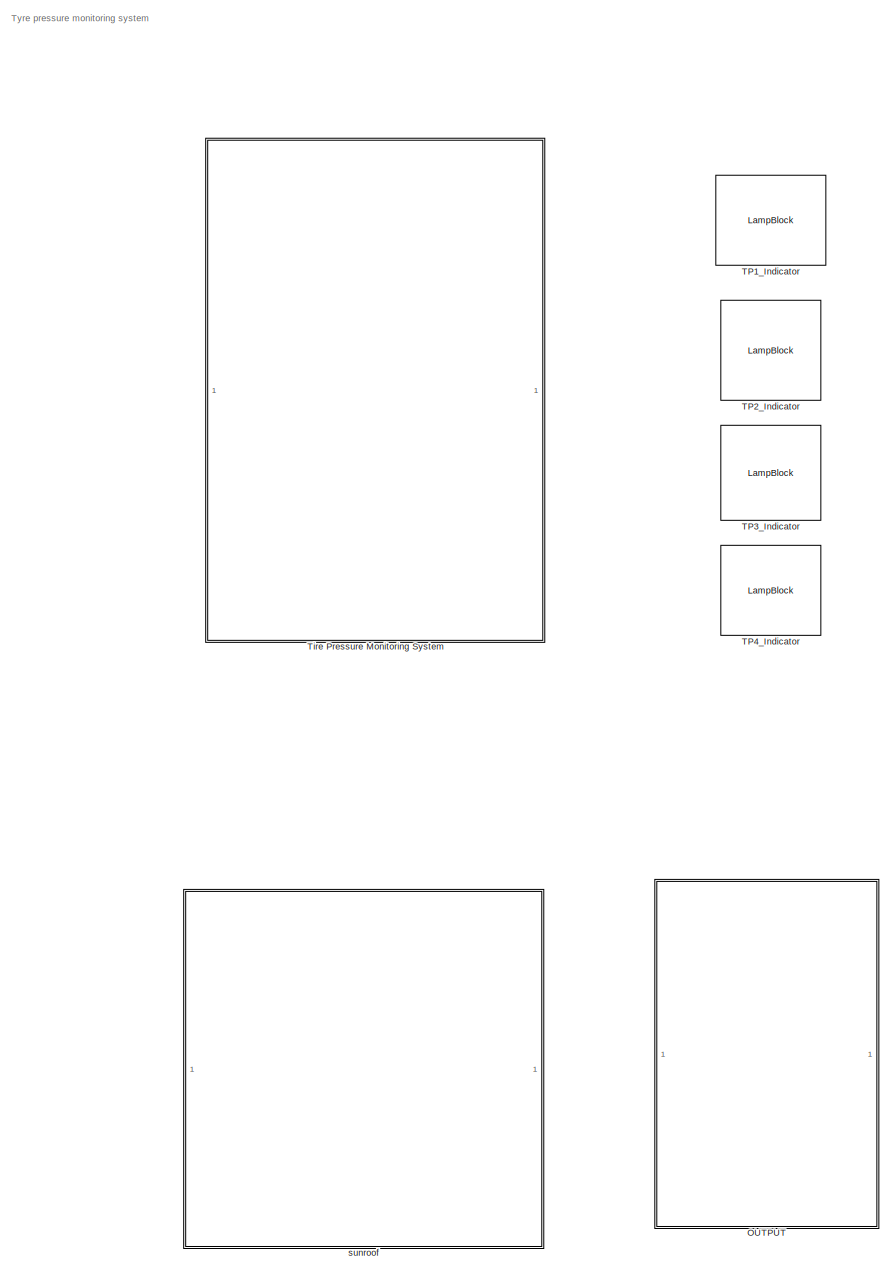
[diagram: root canvas - part 1/2, right side, full height]
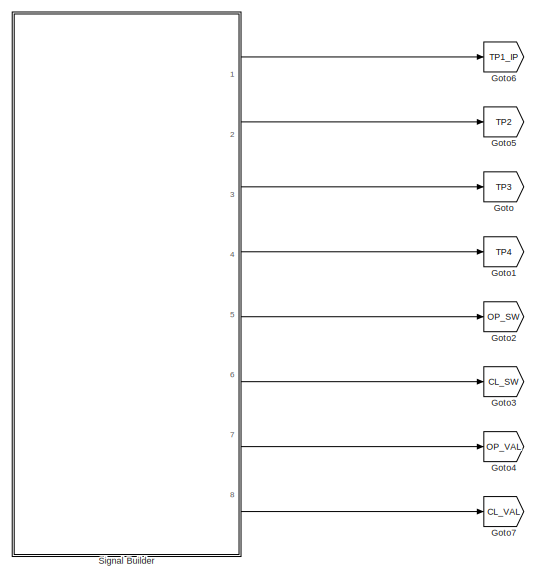
[diagram: root canvas - part 2/2, middle left region]
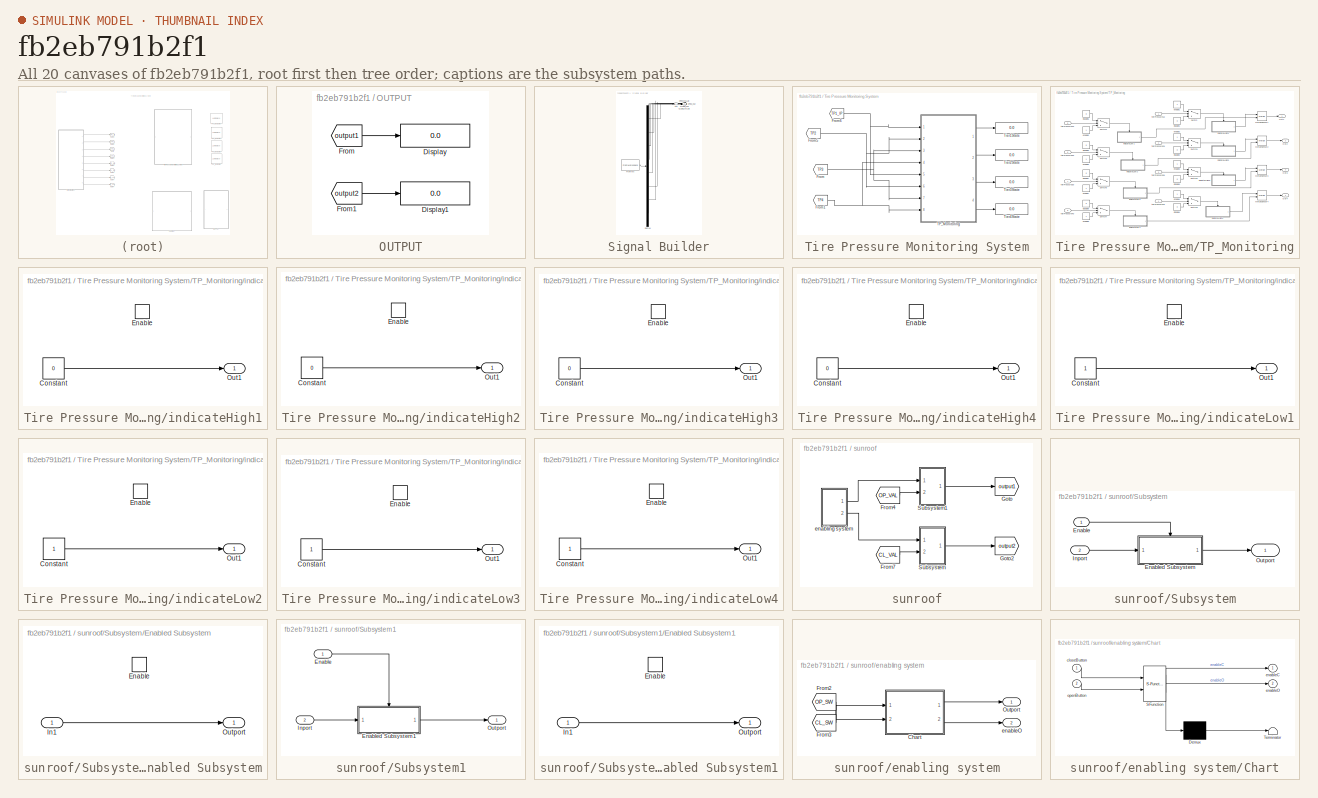
[diagram: thumbnail index - all 20 canvases of the model, root first then tree order]
MODEL slx_fb2eb791b2f1
KIND model
CONFIG AbsTol = auto
CONFIG EnableMultiTasking = off
CONFIG FixedStep = auto
CONFIG MaxStep = auto
CONFIG MinStep = auto
CONFIG RelTol = 1e-3
CONFIG SampleTimeConstraint = Unconstrained
CONFIG SolverName = VariableStepAuto
CONFIG StartTime = 0.0
CONFIG StopTime = 20
BLOCK [Goto] Goto
  GotoTag = TP3
  TagVisibility = global
BLOCK [Goto] Goto1
  GotoTag = TP4
  TagVisibility = global
BLOCK [Goto] Goto2
  GotoTag = OP_SW
  TagVisibility = global
BLOCK [Goto] Goto3
  GotoTag = CL_SW
  TagVisibility = global
BLOCK [Goto] Goto4
  GotoTag = OP_VAL
  TagVisibility = global
BLOCK [Goto] Goto5
  GotoTag = TP2
  TagVisibility = global
BLOCK [Goto] Goto6
  GotoTag = TP1_IP
  TagVisibility = global
BLOCK [Goto] Goto7
  GotoTag = CL_VAL
  TagVisibility = global
BLOCK [SubSystem] OUTPUT
  Ports = []
  RequestExecContextInheritance = off
BLOCK [Display] OUTPUT/Display
  Decimation = 1
  Ports = [1]
BLOCK [Display] OUTPUT/Display1
  Decimation = 1
  Ports = [1]
BLOCK [From] OUTPUT/From
  GotoTag = output1
  TagVisibility = global
BLOCK [From] OUTPUT/From1
  GotoTag = output2
  TagVisibility = global
BLOCK [SubSystem] Signal Builder
  ClipboardFcn = sigbuilder_block('clipboard');
  CloseFcn = sigbuilder_block('close');
  ContinueFcn = sigbuilder_block('continue');
  CopyFcn = sigbuilder_block('copy');
  DeleteFcn = sigbuilder_block('delete');
  LoadFcn = sigbuilder_block('load');
  MaskHideContents = on
  ModelCloseFcn = sigbuilder_block('modelClose');
  NameChangeFcn = sigbuilder_block('namechange');
  OpenFcn = sigbuilder_block('open',[0 30 1200 587.25 ]);
  PauseFcn = sigbuilder_block('pause');
  Ports = [0, 8]
  PreSaveFcn = sigbuilder_block('preSave');
  RequestExecContextInheritance = off
  StartFcn = sigbuilder_block('start');
  StopFcn = sigbuilder_block('stop');
  Tag = STV Subsys
BLOCK [Outport] Signal Builder/CLOSE_SW
  Port = 6
  Tag = STV Outport
BLOCK [Outport] Signal Builder/CLOSE_VALUE
  Port = 8
  Tag = STV Outport
BLOCK [Demux] Signal Builder/Demux
  DisplayOption = none
  Outputs = 8
  Ports = [1, 8]
  Tag = STV Demux
BLOCK [FromWorkspace] Signal Builder/FromWs
  SampleTime = 1
  Tag = STV FromWs
  VariableName = tuvar
BLOCK [Outport] Signal Builder/OPEN_SW
  Port = 5
  Tag = STV Outport
BLOCK [Outport] Signal Builder/OPEN_VALUE
  Port = 7
  Tag = STV Outport
BLOCK [Outport] Signal Builder/TP1
  Tag = STV Outport
BLOCK [Outport] Signal Builder/TP2
  Port = 2
  Tag = STV Outport
BLOCK [Outport] Signal Builder/TP3
  Port = 3
  Tag = STV Outport
BLOCK [Outport] Signal Builder/TP4
  Port = 4
  Tag = STV Outport
BLOCK [LampBlock] TP1_Indicator
BLOCK [LampBlock] TP2_Indicator
BLOCK [LampBlock] TP3_Indicator
BLOCK [LampBlock] TP4_Indicator
BLOCK [SubSystem] Tire Pressure Monitoring System
  Ports = []
  RequestExecContextInheritance = off
BLOCK [From] Tire Pressure Monitoring System/From
  GotoTag = TP3
  TagVisibility = global
BLOCK [From] Tire Pressure Monitoring System/From1
  GotoTag = TP4
  TagVisibility = global
BLOCK [From] Tire Pressure Monitoring System/From5
  GotoTag = TP2
  TagVisibility = global
BLOCK [From] Tire Pressure Monitoring System/From6
  GotoTag = TP1_IP
  TagVisibility = global
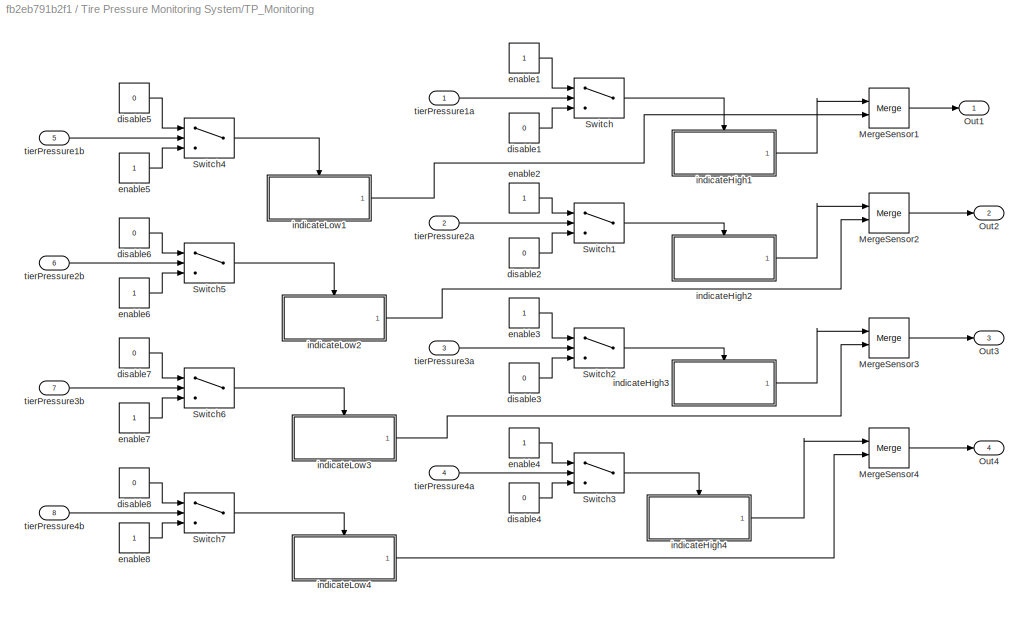
BLOCK [SubSystem] Tire Pressure Monitoring System/TP_Monitoring
  Ports = [8, 4]
  RequestExecContextInheritance = off
BLOCK [Merge] Tire Pressure Monitoring System/TP_Monitoring/MergeSensor1
  Ports = [2, 1]
BLOCK [Merge] Tire Pressure Monitoring System/TP_Monitoring/MergeSensor2
  Ports = [2, 1]
BLOCK [Merge] Tire Pressure Monitoring System/TP_Monitoring/MergeSensor3
  Ports = [2, 1]
BLOCK [Merge] Tire Pressure Monitoring System/TP_Monitoring/MergeSensor4
  Ports = [2, 1]
BLOCK [Outport] Tire Pressure Monitoring System/TP_Monitoring/Out1
BLOCK [Outport] Tire Pressure Monitoring System/TP_Monitoring/Out2
  Port = 2
BLOCK [Outport] Tire Pressure Monitoring System/TP_Monitoring/Out3
  Port = 3
BLOCK [Outport] Tire Pressure Monitoring System/TP_Monitoring/Out4
  Port = 4
BLOCK [Switch] Tire Pressure Monitoring System/TP_Monitoring/Switch
  Criteria = u2 > Threshold
  InputSameDT = off
  SaturateOnIntegerOverflow = off
  Threshold = 75
BLOCK [Switch] Tire Pressure Monitoring System/TP_Monitoring/Switch1
  Criteria = u2 > Threshold
  InputSameDT = off
  SaturateOnIntegerOverflow = off
  Threshold = 75
BLOCK [Switch] Tire Pressure Monitoring System/TP_Monitoring/Switch2
  Criteria = u2 > Threshold
  InputSameDT = off
  SaturateOnIntegerOverflow = off
  Threshold = 75
BLOCK [Switch] Tire Pressure Monitoring System/TP_Monitoring/Switch3
  Criteria = u2 > Threshold
  InputSameDT = off
  SaturateOnIntegerOverflow = off
  Threshold = 75
BLOCK [Switch] Tire Pressure Monitoring System/TP_Monitoring/Switch4
  Criteria = u2 > Threshold
  InputSameDT = off
  SaturateOnIntegerOverflow = off
  Threshold = 75
BLOCK [Switch] Tire Pressure Monitoring System/TP_Monitoring/Switch5
  Criteria = u2 > Threshold
  InputSameDT = off
  SaturateOnIntegerOverflow = off
  Threshold = 75
BLOCK [Switch] Tire Pressure Monitoring System/TP_Monitoring/Switch6
  Criteria = u2 > Threshold
  InputSameDT = off
  SaturateOnIntegerOverflow = off
  Threshold = 75
BLOCK [Switch] Tire Pressure Monitoring System/TP_Monitoring/Switch7
  Criteria = u2 > Threshold
  InputSameDT = off
  SaturateOnIntegerOverflow = off
  Threshold = 75
BLOCK [Constant] Tire Pressure Monitoring System/TP_Monitoring/disable1
  Value = 0
BLOCK [Constant] Tire Pressure Monitoring System/TP_Monitoring/disable2
  Value = 0
BLOCK [Constant] Tire Pressure Monitoring System/TP_Monitoring/disable3
  Value = 0
BLOCK [Constant] Tire Pressure Monitoring System/TP_Monitoring/disable4
  Value = 0
BLOCK [Constant] Tire Pressure Monitoring System/TP_Monitoring/disable5
  Value = 0
BLOCK [Constant] Tire Pressure Monitoring System/TP_Monitoring/disable6
  Value = 0
BLOCK [Constant] Tire Pressure Monitoring System/TP_Monitoring/disable7
  Value = 0
BLOCK [Constant] Tire Pressure Monitoring System/TP_Monitoring/disable8
  Value = 0
BLOCK [Constant] Tire Pressure Monitoring System/TP_Monitoring/enable1
BLOCK [Constant] Tire Pressure Monitoring System/TP_Monitoring/enable2
BLOCK [Constant] Tire Pressure Monitoring System/TP_Monitoring/enable3
BLOCK [Constant] Tire Pressure Monitoring System/TP_Monitoring/enable4
BLOCK [Constant] Tire Pressure Monitoring System/TP_Monitoring/enable5
BLOCK [Constant] Tire Pressure Monitoring System/TP_Monitoring/enable6
BLOCK [Constant] Tire Pressure Monitoring System/TP_Monitoring/enable7
BLOCK [Constant] Tire Pressure Monitoring System/TP_Monitoring/enable8
BLOCK [SubSystem] Tire Pressure Monitoring System/TP_Monitoring/indicateHigh1
  Ports = [0, 1, 1]
  RequestExecContextInheritance = off
  TreatAsAtomicUnit = on
BLOCK [Constant] Tire Pressure Monitoring System/TP_Monitoring/indicateHigh1/Constant
  Value = 0
BLOCK [EnablePort] Tire Pressure Monitoring System/TP_Monitoring/indicateHigh1/Enable
  Ports = []
BLOCK [Outport] Tire Pressure Monitoring System/TP_Monitoring/indicateHigh1/Out1
BLOCK [SubSystem] Tire Pressure Monitoring System/TP_Monitoring/indicateHigh2
  Ports = [0, 1, 1]
  RequestExecContextInheritance = off
  TreatAsAtomicUnit = on
BLOCK [Constant] Tire Pressure Monitoring System/TP_Monitoring/indicateHigh2/Constant
  Value = 0
BLOCK [EnablePort] Tire Pressure Monitoring System/TP_Monitoring/indicateHigh2/Enable
  Ports = []
BLOCK [Outport] Tire Pressure Monitoring System/TP_Monitoring/indicateHigh2/Out1
BLOCK [SubSystem] Tire Pressure Monitoring System/TP_Monitoring/indicateHigh3
  Ports = [0, 1, 1]
  RequestExecContextInheritance = off
  TreatAsAtomicUnit = on
BLOCK [Constant] Tire Pressure Monitoring System/TP_Monitoring/indicateHigh3/Constant
  Value = 0
BLOCK [EnablePort] Tire Pressure Monitoring System/TP_Monitoring/indicateHigh3/Enable
  Ports = []
BLOCK [Outport] Tire Pressure Monitoring System/TP_Monitoring/indicateHigh3/Out1
BLOCK [SubSystem] Tire Pressure Monitoring System/TP_Monitoring/indicateHigh4
  Ports = [0, 1, 1]
  RequestExecContextInheritance = off
  TreatAsAtomicUnit = on
BLOCK [Constant] Tire Pressure Monitoring System/TP_Monitoring/indicateHigh4/Constant
  Value = 0
BLOCK [EnablePort] Tire Pressure Monitoring System/TP_Monitoring/indicateHigh4/Enable
  Ports = []
BLOCK [Outport] Tire Pressure Monitoring System/TP_Monitoring/indicateHigh4/Out1
BLOCK [SubSystem] Tire Pressure Monitoring System/TP_Monitoring/indicateLow1
  Ports = [0, 1, 1]
  RequestExecContextInheritance = off
  TreatAsAtomicUnit = on
BLOCK [Constant] Tire Pressure Monitoring System/TP_Monitoring/indicateLow1/Constant
BLOCK [EnablePort] Tire Pressure Monitoring System/TP_Monitoring/indicateLow1/Enable
  Ports = []
BLOCK [Outport] Tire Pressure Monitoring System/TP_Monitoring/indicateLow1/Out1
BLOCK [SubSystem] Tire Pressure Monitoring System/TP_Monitoring/indicateLow2
  Ports = [0, 1, 1]
  RequestExecContextInheritance = off
  TreatAsAtomicUnit = on
BLOCK [Constant] Tire Pressure Monitoring System/TP_Monitoring/indicateLow2/Constant
BLOCK [EnablePort] Tire Pressure Monitoring System/TP_Monitoring/indicateLow2/Enable
  Ports = []
BLOCK [Outport] Tire Pressure Monitoring System/TP_Monitoring/indicateLow2/Out1
BLOCK [SubSystem] Tire Pressure Monitoring System/TP_Monitoring/indicateLow3
  Ports = [0, 1, 1]
  RequestExecContextInheritance = off
  TreatAsAtomicUnit = on
BLOCK [Constant] Tire Pressure Monitoring System/TP_Monitoring/indicateLow3/Constant
BLOCK [EnablePort] Tire Pressure Monitoring System/TP_Monitoring/indicateLow3/Enable
  Ports = []
BLOCK [Outport] Tire Pressure Monitoring System/TP_Monitoring/indicateLow3/Out1
BLOCK [SubSystem] Tire Pressure Monitoring System/TP_Monitoring/indicateLow4
  Ports = [0, 1, 1]
  RequestExecContextInheritance = off
  TreatAsAtomicUnit = on
BLOCK [Constant] Tire Pressure Monitoring System/TP_Monitoring/indicateLow4/Constant
BLOCK [EnablePort] Tire Pressure Monitoring System/TP_Monitoring/indicateLow4/Enable
  Ports = []
BLOCK [Outport] Tire Pressure Monitoring System/TP_Monitoring/indicateLow4/Out1
BLOCK [Inport] Tire Pressure Monitoring System/TP_Monitoring/tierPressure1a
BLOCK [Inport] Tire Pressure Monitoring System/TP_Monitoring/tierPressure1b
  Port = 5
BLOCK [Inport] Tire Pressure Monitoring System/TP_Monitoring/tierPressure2a
  Port = 2
BLOCK [Inport] Tire Pressure Monitoring System/TP_Monitoring/tierPressure2b
  Port = 6
BLOCK [Inport] Tire Pressure Monitoring System/TP_Monitoring/tierPressure3a
  Port = 3
BLOCK [Inport] Tire Pressure Monitoring System/TP_Monitoring/tierPressure3b
  Port = 7
BLOCK [Inport] Tire Pressure Monitoring System/TP_Monitoring/tierPressure4a
  Port = 4
BLOCK [Inport] Tire Pressure Monitoring System/TP_Monitoring/tierPressure4b
  Port = 8
BLOCK [Display] Tire Pressure Monitoring System/Tier1State
  Decimation = 1
  Ports = [1]
BLOCK [Display] Tire Pressure Monitoring System/Tier2State
  Decimation = 1
  Ports = [1]
BLOCK [Display] Tire Pressure Monitoring System/Tier3State
  Decimation = 1
  Ports = [1]
BLOCK [Display] Tire Pressure Monitoring System/Tier4State
  Decimation = 1
  Ports = [1]
BLOCK [SubSystem] sunroof
  Ports = []
  RequestExecContextInheritance = off
BLOCK [From] sunroof/From4
  GotoTag = OP_VAL
  TagVisibility = global
BLOCK [From] sunroof/From7
  GotoTag = CL_VAL
  TagVisibility = global
BLOCK [Goto] sunroof/Goto
  GotoTag = output1
  TagVisibility = global
BLOCK [Goto] sunroof/Goto2
  GotoTag = output2
  TagVisibility = global
BLOCK [SubSystem] sunroof/Subsystem
  Ports = [2, 1]
  RequestExecContextInheritance = off
BLOCK [Inport] sunroof/Subsystem/Enable
BLOCK [SubSystem] sunroof/Subsystem/Enabled Subsystem
  Ports = [1, 1, 1]
  RequestExecContextInheritance = off
  TreatAsAtomicUnit = on
BLOCK [EnablePort] sunroof/Subsystem/Enabled Subsystem/Enable
  Ports = []
BLOCK [Inport] sunroof/Subsystem/Enabled Subsystem/In1
BLOCK [Outport] sunroof/Subsystem/Enabled Subsystem/Outport
BLOCK [Inport] sunroof/Subsystem/Inport
  Port = 2
BLOCK [Outport] sunroof/Subsystem/Outport
BLOCK [SubSystem] sunroof/Subsystem1
  Ports = [2, 1]
  RequestExecContextInheritance = off
BLOCK [Inport] sunroof/Subsystem1/Enable
BLOCK [SubSystem] sunroof/Subsystem1/Enabled Subsystem1
  Ports = [1, 1, 1]
  RequestExecContextInheritance = off
  TreatAsAtomicUnit = on
BLOCK [EnablePort] sunroof/Subsystem1/Enabled Subsystem1/Enable
  Ports = []
BLOCK [Inport] sunroof/Subsystem1/Enabled Subsystem1/In1
BLOCK [Outport] sunroof/Subsystem1/Enabled Subsystem1/Outport
BLOCK [Inport] sunroof/Subsystem1/Inport
  Port = 2
BLOCK [Outport] sunroof/Subsystem1/Outport
BLOCK [SubSystem] sunroof/enabling system
  Ports = [0, 2]
  RequestExecContextInheritance = off
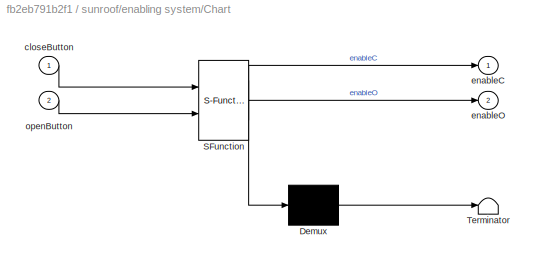
BLOCK [SubSystem] sunroof/enabling system/Chart
  ErrorFcn = Stateflow.Translate.translate
  PermitHierarchicalResolution = ExplicitOnly
  PortSchema = {"entries":[{"content":{"sides":[{"content":{"connectorIds":["In2","In1"]},"type":"ConnectorPlacement.EquallySpacedRectSide","uuid":"e77fb548-5411-4dff-a09c-dcff2e4e83fa"},{"content":{"connectorIds":["Out1","Out2"],"side":"RIGHT"},"type":"ConnectorPlacement.EquallySpacedRectSide","uuid":"fb2d12f5-730f-4265-a3f8-30409b75040e"},{"content":{"connectorIds":[],"side":"TOP"},"type":"ConnectorPlacement.E...<+397ch>
  Ports = [2, 2]
  RequestExecContextInheritance = off
  SFBlockType = Chart
  TreatAsAtomicUnit = on
BLOCK [Demux] sunroof/enabling system/Chart/ Demux 
  Outputs = 1
  Ports = [1, 1]
BLOCK [S-Function] sunroof/enabling system/Chart/ SFunction 
  EnableBusSupport = on
  FunctionName = sf_sfun
  PortCounts = [2 3]
  Ports = [2, 3]
  SFcnIsStateOwnerBlock = off
  SFunctionDeploymentMode = off
  Tag = Stateflow S-Function 3
BLOCK [Terminator] sunroof/enabling system/Chart/ Terminator 
BLOCK [Inport] sunroof/enabling system/Chart/closeButton
BLOCK [Outport] sunroof/enabling system/Chart/enableC
BLOCK [Outport] sunroof/enabling system/Chart/enableO
  Port = 2
BLOCK [Inport] sunroof/enabling system/Chart/openButton
  Port = 2
BLOCK [From] sunroof/enabling system/From2
  GotoTag = OP_SW
  TagVisibility = global
BLOCK [From] sunroof/enabling system/From3
  GotoTag = CL_SW
  TagVisibility = global
BLOCK [Outport] sunroof/enabling system/Outport
BLOCK [Outport] sunroof/enabling system/enableO
  Port = 2
ANNOTATION (root): Tyre pressure monitoring system
LINE OUTPUT/From1:1 -> OUTPUT/Display1:1
LINE OUTPUT/From:1 -> OUTPUT/Display:1
LINE Signal Builder:1 -> Goto6:1
LINE Signal Builder:2 -> Goto5:1
LINE Signal Builder:3 -> Goto:1
LINE Signal Builder:4 -> Goto1:1
LINE Signal Builder:5 -> Goto2:1
LINE Signal Builder:6 -> Goto3:1
LINE Signal Builder:7 -> Goto4:1
LINE Signal Builder:8 -> Goto7:1
NET Tire Pressure Monitoring System/From1:1 -> Tire Pressure Monitoring System/TP_Monitoring:4, Tire Pressure Monitoring System/TP_Monitoring:8
NET Tire Pressure Monitoring System/From5:1 -> Tire Pressure Monitoring System/TP_Monitoring:2, Tire Pressure Monitoring System/TP_Monitoring:6
NET Tire Pressure Monitoring System/From6:1 -> Tire Pressure Monitoring System/TP_Monitoring:1, Tire Pressure Monitoring System/TP_Monitoring:5
NET Tire Pressure Monitoring System/From:1 -> Tire Pressure Monitoring System/TP_Monitoring:3, Tire Pressure Monitoring System/TP_Monitoring:7
LINE Tire Pressure Monitoring System/TP_Monitoring/MergeSensor1:1 -> Tire Pressure Monitoring System/TP_Monitoring/Out1:1
LINE Tire Pressure Monitoring System/TP_Monitoring/MergeSensor2:1 -> Tire Pressure Monitoring System/TP_Monitoring/Out2:1
LINE Tire Pressure Monitoring System/TP_Monitoring/MergeSensor3:1 -> Tire Pressure Monitoring System/TP_Monitoring/Out3:1
LINE Tire Pressure Monitoring System/TP_Monitoring/MergeSensor4:1 -> Tire Pressure Monitoring System/TP_Monitoring/Out4:1
LINE Tire Pressure Monitoring System/TP_Monitoring/Switch1:1 -> Tire Pressure Monitoring System/TP_Monitoring/indicateHigh2:enable
LINE Tire Pressure Monitoring System/TP_Monitoring/Switch2:1 -> Tire Pressure Monitoring System/TP_Monitoring/indicateHigh3:enable
LINE Tire Pressure Monitoring System/TP_Monitoring/Switch3:1 -> Tire Pressure Monitoring System/TP_Monitoring/indicateHigh4:enable
LINE Tire Pressure Monitoring System/TP_Monitoring/Switch4:1 -> Tire Pressure Monitoring System/TP_Monitoring/indicateLow1:enable
LINE Tire Pressure Monitoring System/TP_Monitoring/Switch5:1 -> Tire Pressure Monitoring System/TP_Monitoring/indicateLow2:enable
LINE Tire Pressure Monitoring System/TP_Monitoring/Switch6:1 -> Tire Pressure Monitoring System/TP_Monitoring/indicateLow3:enable
LINE Tire Pressure Monitoring System/TP_Monitoring/Switch7:1 -> Tire Pressure Monitoring System/TP_Monitoring/indicateLow4:enable
LINE Tire Pressure Monitoring System/TP_Monitoring/Switch:1 -> Tire Pressure Monitoring System/TP_Monitoring/indicateHigh1:enable
LINE Tire Pressure Monitoring System/TP_Monitoring/disable1:1 -> Tire Pressure Monitoring System/TP_Monitoring/Switch:3
LINE Tire Pressure Monitoring System/TP_Monitoring/disable2:1 -> Tire Pressure Monitoring System/TP_Monitoring/Switch1:3
LINE Tire Pressure Monitoring System/TP_Monitoring/disable3:1 -> Tire Pressure Monitoring System/TP_Monitoring/Switch2:3
LINE Tire Pressure Monitoring System/TP_Monitoring/disable4:1 -> Tire Pressure Monitoring System/TP_Monitoring/Switch3:3
LINE Tire Pressure Monitoring System/TP_Monitoring/disable5:1 -> Tire Pressure Monitoring System/TP_Monitoring/Switch4:1
LINE Tire Pressure Monitoring System/TP_Monitoring/disable6:1 -> Tire Pressure Monitoring System/TP_Monitoring/Switch5:1
LINE Tire Pressure Monitoring System/TP_Monitoring/disable7:1 -> Tire Pressure Monitoring System/TP_Monitoring/Switch6:1
LINE Tire Pressure Monitoring System/TP_Monitoring/disable8:1 -> Tire Pressure Monitoring System/TP_Monitoring/Switch7:1
LINE Tire Pressure Monitoring System/TP_Monitoring/enable1:1 -> Tire Pressure Monitoring System/TP_Monitoring/Switch:1
LINE Tire Pressure Monitoring System/TP_Monitoring/enable2:1 -> Tire Pressure Monitoring System/TP_Monitoring/Switch1:1
LINE Tire Pressure Monitoring System/TP_Monitoring/enable3:1 -> Tire Pressure Monitoring System/TP_Monitoring/Switch2:1
LINE Tire Pressure Monitoring System/TP_Monitoring/enable4:1 -> Tire Pressure Monitoring System/TP_Monitoring/Switch3:1
LINE Tire Pressure Monitoring System/TP_Monitoring/enable5:1 -> Tire Pressure Monitoring System/TP_Monitoring/Switch4:3
LINE Tire Pressure Monitoring System/TP_Monitoring/enable6:1 -> Tire Pressure Monitoring System/TP_Monitoring/Switch5:3
LINE Tire Pressure Monitoring System/TP_Monitoring/enable7:1 -> Tire Pressure Monitoring System/TP_Monitoring/Switch6:3
LINE Tire Pressure Monitoring System/TP_Monitoring/enable8:1 -> Tire Pressure Monitoring System/TP_Monitoring/Switch7:3
LINE Tire Pressure Monitoring System/TP_Monitoring/indicateHigh1/Constant:1 -> Tire Pressure Monitoring System/TP_Monitoring/indicateHigh1/Out1:1
LINE Tire Pressure Monitoring System/TP_Monitoring/indicateHigh1:1 -> Tire Pressure Monitoring System/TP_Monitoring/MergeSensor1:1
LINE Tire Pressure Monitoring System/TP_Monitoring/indicateHigh2/Constant:1 -> Tire Pressure Monitoring System/TP_Monitoring/indicateHigh2/Out1:1
LINE Tire Pressure Monitoring System/TP_Monitoring/indicateHigh2:1 -> Tire Pressure Monitoring System/TP_Monitoring/MergeSensor2:1
LINE Tire Pressure Monitoring System/TP_Monitoring/indicateHigh3/Constant:1 -> Tire Pressure Monitoring System/TP_Monitoring/indicateHigh3/Out1:1
LINE Tire Pressure Monitoring System/TP_Monitoring/indicateHigh3:1 -> Tire Pressure Monitoring System/TP_Monitoring/MergeSensor3:1
LINE Tire Pressure Monitoring System/TP_Monitoring/indicateHigh4/Constant:1 -> Tire Pressure Monitoring System/TP_Monitoring/indicateHigh4/Out1:1
LINE Tire Pressure Monitoring System/TP_Monitoring/indicateHigh4:1 -> Tire Pressure Monitoring System/TP_Monitoring/MergeSensor4:1
LINE Tire Pressure Monitoring System/TP_Monitoring/indicateLow1/Constant:1 -> Tire Pressure Monitoring System/TP_Monitoring/indicateLow1/Out1:1
LINE Tire Pressure Monitoring System/TP_Monitoring/indicateLow1:1 -> Tire Pressure Monitoring System/TP_Monitoring/MergeSensor1:2
LINE Tire Pressure Monitoring System/TP_Monitoring/indicateLow2/Constant:1 -> Tire Pressure Monitoring System/TP_Monitoring/indicateLow2/Out1:1
LINE Tire Pressure Monitoring System/TP_Monitoring/indicateLow2:1 -> Tire Pressure Monitoring System/TP_Monitoring/MergeSensor2:2
LINE Tire Pressure Monitoring System/TP_Monitoring/indicateLow3/Constant:1 -> Tire Pressure Monitoring System/TP_Monitoring/indicateLow3/Out1:1
LINE Tire Pressure Monitoring System/TP_Monitoring/indicateLow3:1 -> Tire Pressure Monitoring System/TP_Monitoring/MergeSensor3:2
LINE Tire Pressure Monitoring System/TP_Monitoring/indicateLow4/Constant:1 -> Tire Pressure Monitoring System/TP_Monitoring/indicateLow4/Out1:1
LINE Tire Pressure Monitoring System/TP_Monitoring/indicateLow4:1 -> Tire Pressure Monitoring System/TP_Monitoring/MergeSensor4:2
LINE Tire Pressure Monitoring System/TP_Monitoring/tierPressure1a:1 -> Tire Pressure Monitoring System/TP_Monitoring/Switch:2
LINE Tire Pressure Monitoring System/TP_Monitoring/tierPressure1b:1 -> Tire Pressure Monitoring System/TP_Monitoring/Switch4:2
LINE Tire Pressure Monitoring System/TP_Monitoring/tierPressure2a:1 -> Tire Pressure Monitoring System/TP_Monitoring/Switch1:2
LINE Tire Pressure Monitoring System/TP_Monitoring/tierPressure2b:1 -> Tire Pressure Monitoring System/TP_Monitoring/Switch5:2
LINE Tire Pressure Monitoring System/TP_Monitoring/tierPressure3a:1 -> Tire Pressure Monitoring System/TP_Monitoring/Switch2:2
LINE Tire Pressure Monitoring System/TP_Monitoring/tierPressure3b:1 -> Tire Pressure Monitoring System/TP_Monitoring/Switch6:2
LINE Tire Pressure Monitoring System/TP_Monitoring/tierPressure4a:1 -> Tire Pressure Monitoring System/TP_Monitoring/Switch3:2
LINE Tire Pressure Monitoring System/TP_Monitoring/tierPressure4b:1 -> Tire Pressure Monitoring System/TP_Monitoring/Switch7:2
LINE Tire Pressure Monitoring System/TP_Monitoring:1 -> Tire Pressure Monitoring System/Tier1State:1
LINE Tire Pressure Monitoring System/TP_Monitoring:2 -> Tire Pressure Monitoring System/Tier2State:1
LINE Tire Pressure Monitoring System/TP_Monitoring:3 -> Tire Pressure Monitoring System/Tier3State:1
LINE Tire Pressure Monitoring System/TP_Monitoring:4 -> Tire Pressure Monitoring System/Tier4State:1
LINE sunroof/From4:1 -> sunroof/Subsystem1:2
LINE sunroof/From7:1 -> sunroof/Subsystem:2
LINE sunroof/Subsystem/Enable:1 -> sunroof/Subsystem/Enabled Subsystem:enable
LINE sunroof/Subsystem/Enabled Subsystem/In1:1 -> sunroof/Subsystem/Enabled Subsystem/Outport:1
LINE sunroof/Subsystem/Enabled Subsystem:1 -> sunroof/Subsystem/Outport:1
LINE sunroof/Subsystem/Inport:1 -> sunroof/Subsystem/Enabled Subsystem:1
LINE sunroof/Subsystem1/Enable:1 -> sunroof/Subsystem1/Enabled Subsystem1:enable
LINE sunroof/Subsystem1/Enabled Subsystem1/In1:1 -> sunroof/Subsystem1/Enabled Subsystem1/Outport:1
LINE sunroof/Subsystem1/Enabled Subsystem1:1 -> sunroof/Subsystem1/Outport:1
LINE sunroof/Subsystem1/Inport:1 -> sunroof/Subsystem1/Enabled Subsystem1:1
LINE sunroof/Subsystem1:1 -> sunroof/Goto:1
LINE sunroof/Subsystem:1 -> sunroof/Goto2:1
LINE sunroof/enabling system/Chart:1 -> sunroof/enabling system/Outport:1
LINE sunroof/enabling system/Chart:2 -> sunroof/enabling system/enableO:1
LINE sunroof/enabling system/From2:1 -> sunroof/enabling system/Chart:2
LINE sunroof/enabling system/From3:1 -> sunroof/enabling system/Chart:1
LINE sunroof/enabling system:1 -> sunroof/Subsystem1:1
LINE sunroof/enabling system:2 -> sunroof/Subsystem:1
note: NET lines group one-source signal fan-out (src -> all destinations, sorted); 1:1 wires keep LINE
CHART sunroof/enabling system/Chart states=3 transitions=6
  STATE_LABEL 'stage1\nentry:\nenableO=0;\nenableC=0;'
  STATE_LABEL 'stage3\nentry:\nenableO=1;\nenableC=0;'
  STATE_LABEL 'stage2\nentry:\nenableO=0;\nenableC=1;'
CHART  states=0 transitions=0
